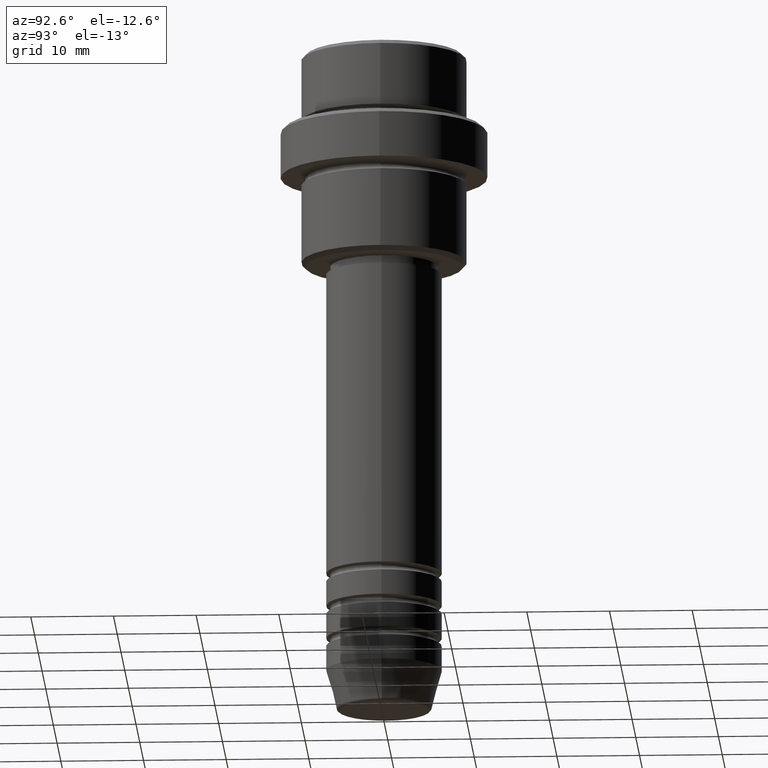
[diagram: clean part render]
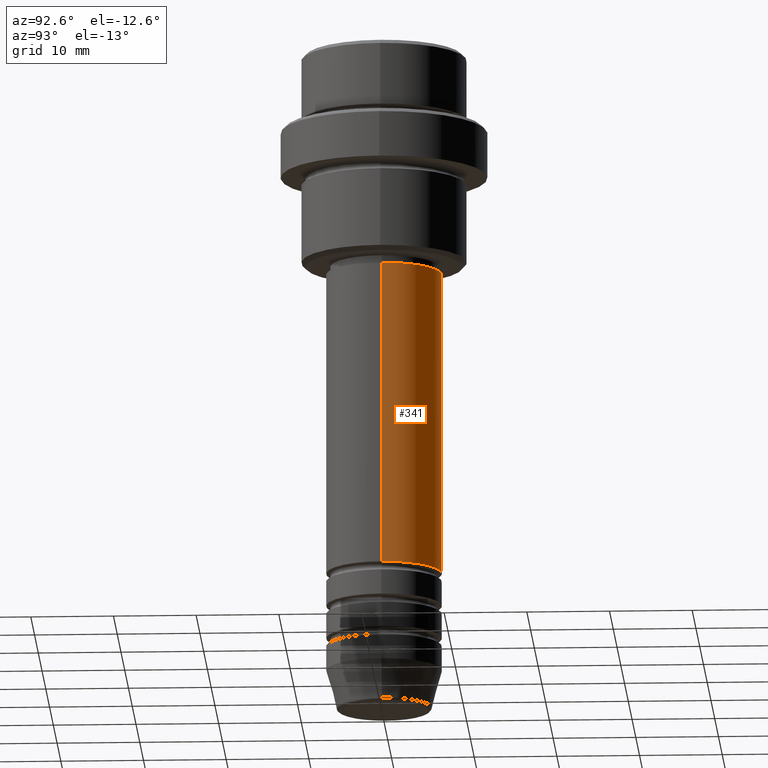
[diagram: same view with one face highlighted and labeled with its STEP entity id]
A machine part, auxiliary view. The second image highlights one B-rep face of the part: STEP entity #341.
In plain terms, the highlighted cylindrical surface (partial cylindrical patch) has radius 7 mm, axis along (-0, -0, 1).
Its self-contained STEP definition (entity closure, byte-faithful):
#26 = VERTEX_POINT ( 'NONE', #453 ) ;
#193 = AXIS2_PLACEMENT_3D ( 'NONE', #1210, #433, #890 ) ;
#252 = CARTESIAN_POINT ( 'NONE',  ( 0.000000000000000000, 0.000000000000000000, -63.99999999999989342 ) ) ;
#279 = DIRECTION ( 'NONE',  ( -0.000000000000000000, -0.000000000000000000, 1.000000000000000000 ) ) ;
#301 = VERTEX_POINT ( 'NONE', #306 ) ;
#306 = CARTESIAN_POINT ( 'NONE',  ( -7.000000000000000000, 8.572527594031473190E-16, -63.99999999999989342 ) ) ;
#320 = DIRECTION ( 'NONE',  ( -0.000000000000000000, -0.000000000000000000, 1.000000000000000000 ) ) ;
#328 = AXIS2_PLACEMENT_3D ( 'NONE', #252, #279, #1010 ) ;
#341 = ADVANCED_FACE ( 'NONE', ( #1326 ), #448, .T. ) ;
#407 = LINE ( 'NONE', #1041, #718 ) ;
#433 = DIRECTION ( 'NONE',  ( -0.000000000000000000, -0.000000000000000000, 1.000000000000000000 ) ) ;
#437 = VERTEX_POINT ( 'NONE', #894 ) ;
#448 = CYLINDRICAL_SURFACE ( 'NONE', #904, 7.000000000000000000 ) ;
#453 = CARTESIAN_POINT ( 'NONE',  ( 7.000000000000000000, 0.000000000000000000, -27.00000000000000355 ) ) ;
#473 = EDGE_CURVE ( 'NONE', #1287, #301, #900, .T. ) ;
#552 = EDGE_LOOP ( 'NONE', ( #1167, #664, #1169, #1334 ) ) ;
#664 = ORIENTED_EDGE ( 'NONE', *, *, #1125, .T. ) ;
#718 = VECTOR ( 'NONE', #1163, 1000.000000000000000 ) ;
#768 = EDGE_CURVE ( 'NONE', #1287, #26, #1103, .T. ) ;
#811 = CIRCLE ( 'NONE', #193, 7.000000000000000000 ) ;
#890 = DIRECTION ( 'NONE',  ( 1.000000000000000000, 0.000000000000000000, 0.000000000000000000 ) ) ;
#894 = CARTESIAN_POINT ( 'NONE',  ( -7.000000000000000000, 8.572527594031473190E-16, -27.00000000000000355 ) ) ;
#900 = CIRCLE ( 'NONE', #328, 7.000000000000000000 ) ;
#904 = AXIS2_PLACEMENT_3D ( 'NONE', #1094, #320, #1316 ) ;
#975 = CARTESIAN_POINT ( 'NONE',  ( 7.000000000000000000, 0.000000000000000000, -63.99999999999989342 ) ) ;
#996 = DIRECTION ( 'NONE',  ( -0.000000000000000000, -0.000000000000000000, 1.000000000000000000 ) ) ;
#1010 = DIRECTION ( 'NONE',  ( 1.000000000000000000, 0.000000000000000000, 0.000000000000000000 ) ) ;
#1041 = CARTESIAN_POINT ( 'NONE',  ( -7.000000000000000000, 8.572527594031473190E-16, 0.000000000000000000 ) ) ;
#1094 = CARTESIAN_POINT ( 'NONE',  ( 0.000000000000000000, 0.000000000000000000, 0.000000000000000000 ) ) ;
#1103 = LINE ( 'NONE', #1405, #1221 ) ;
#1125 = EDGE_CURVE ( 'NONE', #301, #437, #407, .T. ) ;
#1163 = DIRECTION ( 'NONE',  ( -0.000000000000000000, -0.000000000000000000, 1.000000000000000000 ) ) ;
#1167 = ORIENTED_EDGE ( 'NONE', *, *, #473, .T. ) ;
#1169 = ORIENTED_EDGE ( 'NONE', *, *, #1310, .F. ) ;
#1210 = CARTESIAN_POINT ( 'NONE',  ( 0.000000000000000000, 0.000000000000000000, -27.00000000000000355 ) ) ;
#1221 = VECTOR ( 'NONE', #996, 1000.000000000000000 ) ;
#1287 = VERTEX_POINT ( 'NONE', #975 ) ;
#1310 = EDGE_CURVE ( 'NONE', #26, #437, #811, .T. ) ;
#1316 = DIRECTION ( 'NONE',  ( 1.000000000000000000, 0.000000000000000000, 0.000000000000000000 ) ) ;
#1326 = FACE_OUTER_BOUND ( 'NONE', #552, .T. ) ;
#1334 = ORIENTED_EDGE ( 'NONE', *, *, #768, .F. ) ;
#1405 = CARTESIAN_POINT ( 'NONE',  ( 7.000000000000000000, 0.000000000000000000, 0.000000000000000000 ) ) ;